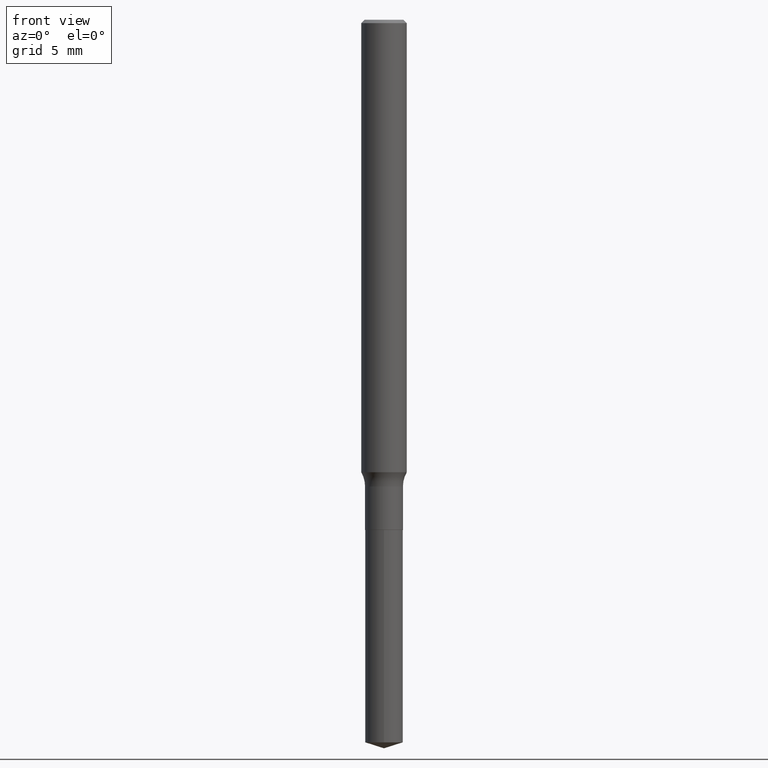
[diagram: clean part render]
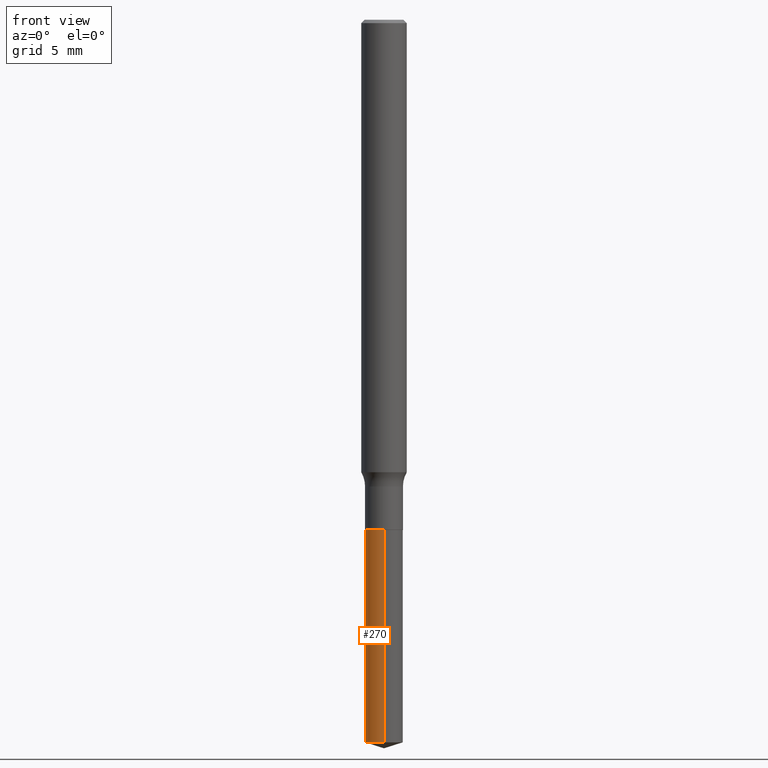
[diagram: same view with one face highlighted and labeled with its STEP entity id]
A machine part, front view. The second image highlights one B-rep face of the part: STEP entity #270.
In plain terms, the highlighted cylindrical surface (edge-blend (fillet) strip) has radius 1.3208 mm, axis along (-0, 0, 1).
Its self-contained STEP definition (entity closure, byte-faithful):
#12 = VERTEX_POINT ( 'NONE', #429 ) ;
#17 = DIRECTION ( 'NONE',  ( -6.982962677686266711E-15, -1.000000000000000000, 5.253553833969737838E-15 ) ) ;
#26 = DIRECTION ( 'NONE',  ( -6.982962677686266711E-15, -1.000000000000000000, 5.253553833969737838E-15 ) ) ;
#37 = CIRCLE ( 'NONE', #146, 0.05199999999999999067 ) ;
#56 = DIRECTION ( 'NONE',  ( -2.445120969459093644E-29, 3.491979460832475934E-15, 1.000000000000000000 ) ) ;
#57 = CARTESIAN_POINT ( 'NONE',  ( 4.850640152010381850E-29, -6.926008224040978869E-15, -1.983604462978292737 ) ) ;
#58 = EDGE_LOOP ( 'NONE', ( #407, #172, #211, #365 ) ) ;
#95 = CARTESIAN_POINT ( 'NONE',  ( 3.425857250584757942E-29, -4.891216207585362759E-15, -1.400900000000000034 ) ) ;
#103 = LINE ( 'NONE', #335, #294 ) ;
#140 = DIRECTION ( 'NONE',  ( -2.445120969459093644E-29, 3.491979460832475934E-15, 1.000000000000000000 ) ) ;
#146 = AXIS2_PLACEMENT_3D ( 'NONE', #406, #56, #26 ) ;
#151 = EDGE_CURVE ( 'NONE', #246, #12, #220, .T. ) ;
#158 = EDGE_CURVE ( 'NONE', #12, #466, #37, .T. ) ;
#165 = EDGE_CURVE ( 'NONE', #309, #466, #103, .T. ) ;
#172 = ORIENTED_EDGE ( 'NONE', *, *, #315, .T. ) ;
#193 = CARTESIAN_POINT ( 'NONE',  ( 3.694822225952862472E-16, 0.05199999999999509875, -1.400900000000000256 ) ) ;
#201 = VECTOR ( 'NONE', #368, 39.37007874015748143 ) ;
#211 = ORIENTED_EDGE ( 'NONE', *, *, #165, .T. ) ;
#216 = DIRECTION ( 'NONE',  ( -2.445120969459093644E-29, 3.491979460832475934E-15, 1.000000000000000000 ) ) ;
#217 = DIRECTION ( 'NONE',  ( -6.982962677686266711E-15, -1.000000000000000000, 5.253553833969737838E-15 ) ) ;
#220 = LINE ( 'NONE', #193, #201 ) ;
#246 = VERTEX_POINT ( 'NONE', #295 ) ;
#270 = ADVANCED_FACE ( 'NONE', ( #285 ), #438, .T. ) ;
#285 = FACE_OUTER_BOUND ( 'NONE', #58, .T. ) ;
#294 = VECTOR ( 'NONE', #140, 39.37007874015748143 ) ;
#295 = CARTESIAN_POINT ( 'NONE',  ( 3.694822225953003974E-16, 0.05199999999999304484, -1.983604462978292959 ) ) ;
#309 = VERTEX_POINT ( 'NONE', #331 ) ;
#315 = EDGE_CURVE ( 'NONE', #246, #309, #333, .T. ) ;
#331 = CARTESIAN_POINT ( 'NONE',  ( -3.631140592396370957E-16, -0.05200000000000690181, -1.983604462978292515 ) ) ;
#333 = CIRCLE ( 'NONE', #424, 0.05199999999999999067 ) ;
#335 = CARTESIAN_POINT ( 'NONE',  ( -3.631140592396514924E-16, -0.05200000000000488259, -1.400899999999999812 ) ) ;
#349 = AXIS2_PLACEMENT_3D ( 'NONE', #95, #216, #17 ) ;
#365 = ORIENTED_EDGE ( 'NONE', *, *, #158, .F. ) ;
#368 = DIRECTION ( 'NONE',  ( -2.445120969459093644E-29, 3.491979460832475934E-15, 1.000000000000000000 ) ) ;
#405 = DIRECTION ( 'NONE',  ( -2.445120969459093644E-29, 3.491979460832475934E-15, 1.000000000000000000 ) ) ;
#406 = CARTESIAN_POINT ( 'NONE',  ( 3.425857250584757942E-29, -4.891216207585362759E-15, -1.400900000000000034 ) ) ;
#407 = ORIENTED_EDGE ( 'NONE', *, *, #151, .F. ) ;
#416 = CARTESIAN_POINT ( 'NONE',  ( -3.631140592396514924E-16, -0.05200000000000488259, -1.400899999999999812 ) ) ;
#424 = AXIS2_PLACEMENT_3D ( 'NONE', #57, #405, #217 ) ;
#429 = CARTESIAN_POINT ( 'NONE',  ( 3.694822225953005946E-16, 0.05199999999999509875, -1.400900000000000256 ) ) ;
#438 = CYLINDRICAL_SURFACE ( 'NONE', #349, 0.05199999999999999067 ) ;
#466 = VERTEX_POINT ( 'NONE', #416 ) ;